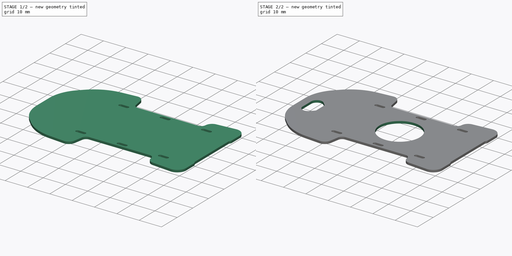
[diagram: build sequence overview — one tinted view per stage of 2, left to right]
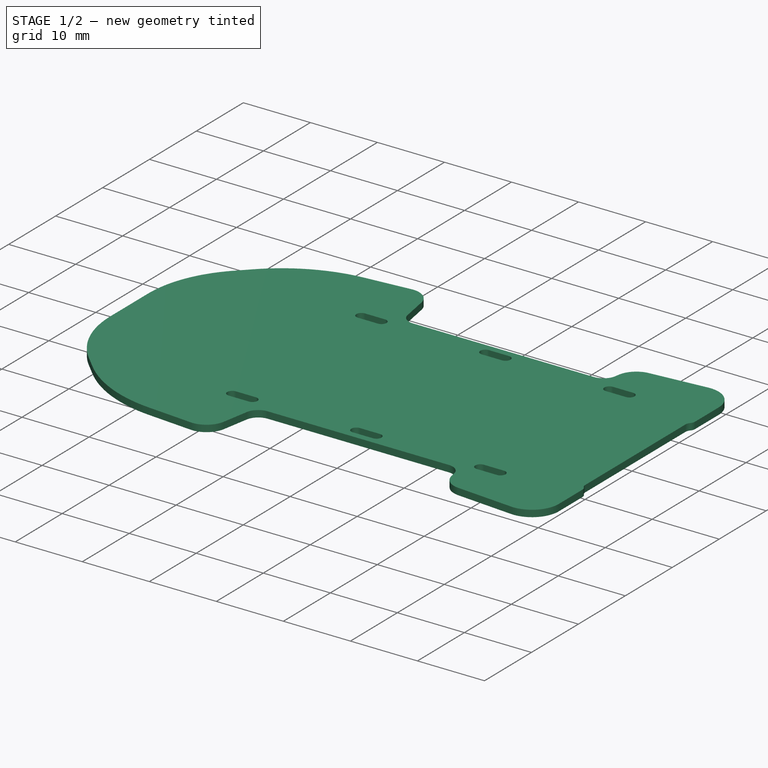
[diagram: stage 1 of 2 — iso view after this stage's code; geometry added in this stage tinted green]
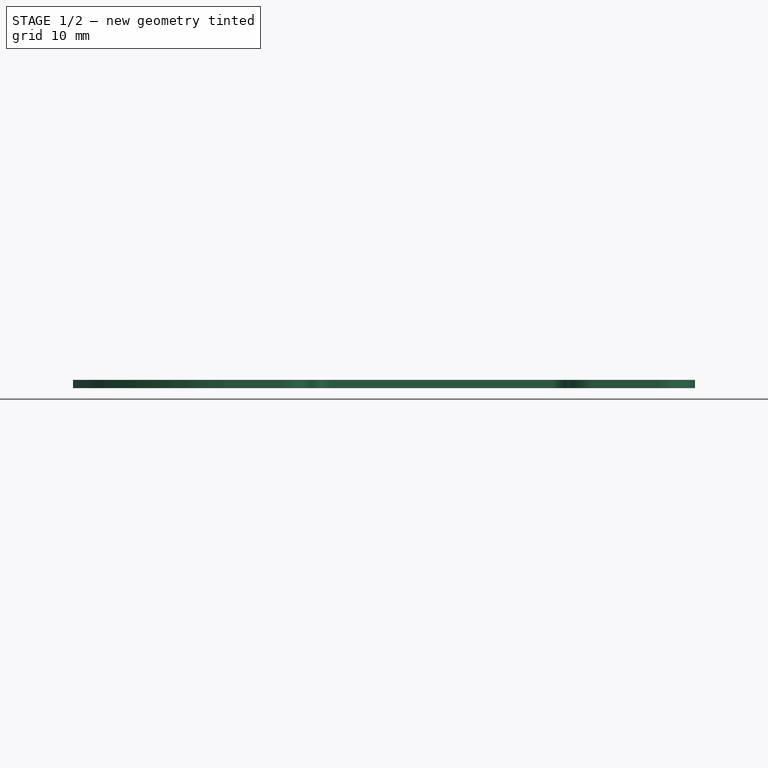
[diagram: stage 1 of 2 — front view after this stage's code; geometry added in this stage tinted green]
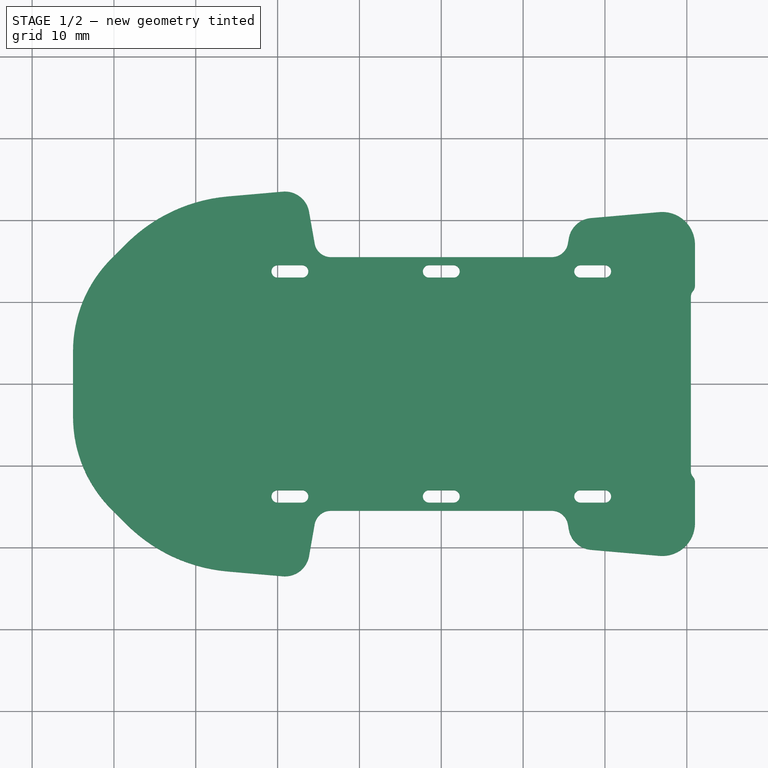
[diagram: stage 1 of 2 — top view after this stage's code; geometry added in this stage tinted green]
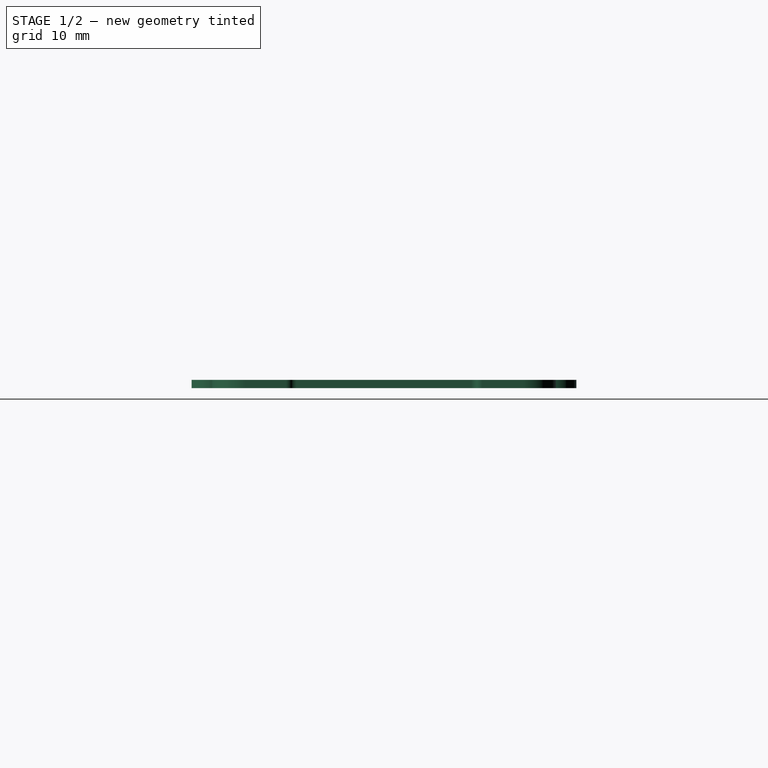
[diagram: stage 1 of 2 — right view after this stage's code; geometry added in this stage tinted green]
FCSTD DOCUMENT  (FreeCAD 0.18.1R)
Label: PCB_Base
License: All rights reserved
LicenseURL: http://en.wikipedia.org/wiki/All_rights_reserved
objects: Sketcher::SketchObject×3, PartDesign::Pocket×2, PartDesign::Pad×1, PartDesign::Mirrored×1, PartDesign::Body×1
note: 11 computed .brp shape members not serialized (recipe doc carries the construction recipe); baked Part::Feature solids carry a one-line shape summary decoded from their .brp

FEATURE [Sketcher::SketchObject] Sketch007
  MapMode = 5
  Support = -> [XY_Plane]
  sketch-geometry (33):
    g0: LineSegment StartX=13.5 StartY=15.5 StartZ=0 EndX=-13.5 EndY=15.5 EndZ=0
    g1: LineSegment StartX=-19.3696 StartY=23.5 StartZ=0 EndX=-26.0989 EndY=22.9113 EndZ=0
    g2: LineSegment StartX=-20 StartY=13 StartZ=0 EndX=-17 EndY=13 EndZ=0
    g3: LineSegment StartX=-1.5 StartY=13 StartZ=0 EndX=1.5 EndY=13 EndZ=0
    g4: LineSegment StartX=17 StartY=13 StartZ=0 EndX=20 EndY=13 EndZ=0
    g5: ArcOfCircle CenterX=-20 CenterY=13.75 CenterZ=0 NormalX=0 NormalY=0 NormalZ=1 AngleXU=0 Radius=0.75 StartAngle=1.5708 EndAngle=4.71239
    g6: ArcOfCircle CenterX=-17 CenterY=13.75 CenterZ=0 NormalX=0 NormalY=0 NormalZ=1 AngleXU=0 Radius=0.75 StartAngle=4.71239 EndAngle=7.85398
    g7: LineSegment StartX=-20 StartY=14.5 StartZ=0 EndX=-17 EndY=14.5 EndZ=0
    g8: ArcOfCircle CenterX=-1.5 CenterY=13.75 CenterZ=0 NormalX=0 NormalY=0 NormalZ=1 AngleXU=0 Radius=0.75 StartAngle=1.5708 EndAngle=4.71239
    g9: ArcOfCircle CenterX=1.5 CenterY=13.75 CenterZ=0 NormalX=0 NormalY=0 NormalZ=1 AngleXU=0 Radius=0.75 StartAngle=4.71239 EndAngle=7.85398
    g10: LineSegment StartX=-1.5 StartY=14.5 StartZ=0 EndX=1.5 EndY=14.5 EndZ=0
    g11: ArcOfCircle CenterX=17 CenterY=13.75 CenterZ=0 NormalX=0 NormalY=0 NormalZ=1 AngleXU=0 Radius=0.75 StartAngle=1.5708 EndAngle=4.71239
    g12: ArcOfCircle CenterX=20 CenterY=13.75 CenterZ=0 NormalX=0 NormalY=0 NormalZ=1 AngleXU=0 Radius=0.75 StartAngle=4.71239 EndAngle=7.85398
    g13: LineSegment StartX=17 StartY=14.5 StartZ=0 EndX=20 EndY=14.5 EndZ=0
    g14: LineSegment StartX=-45 StartY=4 StartZ=0 EndX=-45 EndY=0 EndZ=0
    g15: ArcOfCircle CenterX=13.5 CenterY=17.5 CenterZ=0 NormalX=0 NormalY=0 NormalZ=1 AngleXU=0 Radius=2 StartAngle=4.71239 EndAngle=6.10865
    g16: ArcOfCircle CenterX=27 CenterY=17.0152 CenterZ=0 NormalX=0 NormalY=0 NormalZ=1 AngleXU=0 Radius=4 StartAngle=1.38e-14 EndAngle=1.65806
    g17: LineSegment StartX=18.2766 StartY=20.2673 StartZ=0 EndX=26.6514 EndY=21 EndZ=0
    g18: ArcOfCircle CenterX=18.5381 CenterY=17.2787 CenterZ=0 NormalX=0 NormalY=0 NormalZ=1 AngleXU=0 Radius=3 StartAngle=1.65806 EndAngle=2.96706
    g19: LineSegment StartX=15.5837 StartY=17.7997 StartZ=0 EndX=15.4696 EndY=17.1527 EndZ=0
    g20: LineSegment [constr] StartX=-20 StartY=13.75 StartZ=0 EndX=0 EndY=13.75 EndZ=0
    g21: LineSegment [constr] StartX=0 StartY=13.75 StartZ=0 EndX=20 EndY=13.75 EndZ=0
    g22: ArcOfCircle CenterX=-13.5 CenterY=17.5 CenterZ=0 NormalX=0 NormalY=0 NormalZ=1 AngleXU=0 Radius=2 StartAngle=3.31613 EndAngle=4.71239
    g23: LineSegment StartX=-15.4696 StartY=17.1527 StartZ=0 EndX=-16.1537 EndY=21.0324 EndZ=0
    g24: ArcOfCircle CenterX=-19.1081 CenterY=20.5114 CenterZ=0 NormalX=0 NormalY=0 NormalZ=1 AngleXU=0 Radius=3 StartAngle=0.174533 EndAngle=1.65806
    g25: ArcOfCircle CenterX=-29 CenterY=4 CenterZ=0 NormalX=0 NormalY=0 NormalZ=1 AngleXU=0 Radius=16 StartAngle=2.35619 EndAngle=3.14159
    g26: ArcOfCircle CenterX=-24.3558 CenterY=2.98737 CenterZ=0 NormalX=0 NormalY=0 NormalZ=1 AngleXU=0 Radius=20 StartAngle=1.65806 EndAngle=2.35619
    g27: LineSegment StartX=-40.3137 StartY=15.3137 StartZ=0 EndX=-38.4979 EndY=17.1295 EndZ=0
    g28: LineSegment StartX=-45 StartY=0 StartZ=0 EndX=30.5 EndY=0 EndZ=0
    g29: LineSegment StartX=30.5 StartY=0 StartZ=0 EndX=30.5 EndY=10.6771 EndZ=0
    g30: ArcOfCircle CenterX=31.5 CenterY=10.6771 CenterZ=0 NormalX=0 NormalY=0 NormalZ=1 AngleXU=0 Radius=1 StartAngle=2.41886 EndAngle=3.14159
    g31: ArcOfCircle CenterX=30 CenterY=12 CenterZ=0 NormalX=0 NormalY=0 NormalZ=1 AngleXU=0 Radius=1 StartAngle=5.56045 EndAngle=6.28319
    g32: LineSegment StartX=31 StartY=17.0152 StartZ=0 EndX=31 EndY=12 EndZ=0
  constraints (93):
    c: Horizontal(g2)
    c: Horizontal(g3)
    c: Horizontal(g4)
    c: Coincident(g5,g2)
    c: Coincident(g6,g2)
    c: Coincident(g7,g5)
    c: Coincident(g7,g6)
    c: Horizontal(g7)
    c: Vertical(g2,g5)
    c: Vertical(g5,g5)
    c: Vertical(g6,g6)
    c: Vertical(g6,g2)
    c: Radius(g5) = 0.75
    c: Coincident(g8,g3)
    c: Coincident(g10,g8)
    c: Coincident(g10,g9)
    c: Coincident(g9,g3)
    c: Vertical(g3,g9)
    c: Vertical(g9,g9)
    c: Vertical(g3,g8)
    c: Vertical(g8,g8)
    c: Coincident(g11,g4)
    c: Coincident(g12,g4)
    c: Coincident(g13,g12)
    c: Horizontal(g13)
    c: Coincident(g13,g11)
    c: Vertical(g11,g11)
    c: Vertical(g11,g4)
    c: Vertical(g4,g12)
    c: Vertical(g12,g12)
    c: Equal(g11,g8)
    c: Equal(g8,g5)
    c: PointOnObject(g14,g-1)
    c: Vertical(g14)
    c: Tangent(g17,g16) = 1.5708
    c: Tangent(g15,g0) = 1.5708
    c: Radius(g15) = 2
    c: Tangent(g19,g15) = 1.5708
    c: Tangent(g18,g19) = -1.5708
    c: Tangent(g18,g17) = 1.5708
    c: Angle(g19,g0) = 1.74533
    c: DistanceX(g5,g12) = 40
    c: Equal(g2,g3)
    c: Equal(g3,g4)
    c: DistanceX(g2,g2) = 3
    c: Coincident(g20,g5)
    c: Horizontal(g20)
    c: Coincident(g21,g20)
    c: Coincident(g21,g12)
    c: PointOnObject(g9,g21)
    c: Symmetric(g5,g12,g-2)
    c: DistanceY(g11,g0) = 1
    c: Tangent(g24,g1) = -1.5708
    c: Tangent(g26,g1) = -1.5708
    c: Tangent(g27,g26) = 1.5708
    c: Tangent(g24,g23) = -1.5708
    c: Tangent(g22,g0) = 1.5708
    c: Tangent(g23,g22) = 1.5708
    c: Tangent(g27,g25) = 1.5708
    c: Tangent(g25,g14) = -1.5708
    c: DistanceY(g14,g14) = 4
    c: Radius(g22) = 2
    c: Angle(g0,g23) = 1.74533
    c: PointOnObject(g20,g-2)
    c: Symmetric(g9,g8,g-2)
    c: Coincident(g28,g14)
    c: PointOnObject(g28,g-1)
    c: Coincident(g29,g28)
    c: Vertical(g29)
    c: Tangent(g30,g29) = 1.5708
    c: Vertical(g32)
    c: Tangent(g31,g30) = 1.5708
    c: Tangent(g31,g32) = 1.5708
    c: Radius(g30) = 1
    c: Equal(g30,g31)
    c: Tangent(g32,g16) = 1.5708
    c: DistanceX(g14,g31) = 76
    c: DistanceX(g14,g-1) = 45
    c: Distance(g4,g28) = 13
    c: DistanceX(g28,g31) = 0.5
    c: DistanceY(g28,g16) = 21
    c: DistanceY(g-1,g31) = 12
    c: Symmetric(g0,g0,g-2)
    c: DistanceX(g0,g0) = 27
    c: Radius(g18) = 3
    c: Radius(g16) = 4
    c: Angle(g14,g1) = 1.65806
    c: Angle(g17,g29) = 1.48353
    c: Angle(g28,g27) = 0.785398
    c: DistanceY(g14,g1) = 23.5
    c: Radius(g26) = 20
    c: Radius(g25) = 16
    c: Radius(g24) = 3
FEATURE [PartDesign::Pad] Pad
  Length = 1
  Length2 = 100
  Profile = -> Sketch007
  Type = 0
FEATURE [PartDesign::Mirrored] Mirrored
  BaseFeature = -> Pad
  MirrorPlane = -> Sketch007 [H_Axis]
  Originals = -> [Pad]
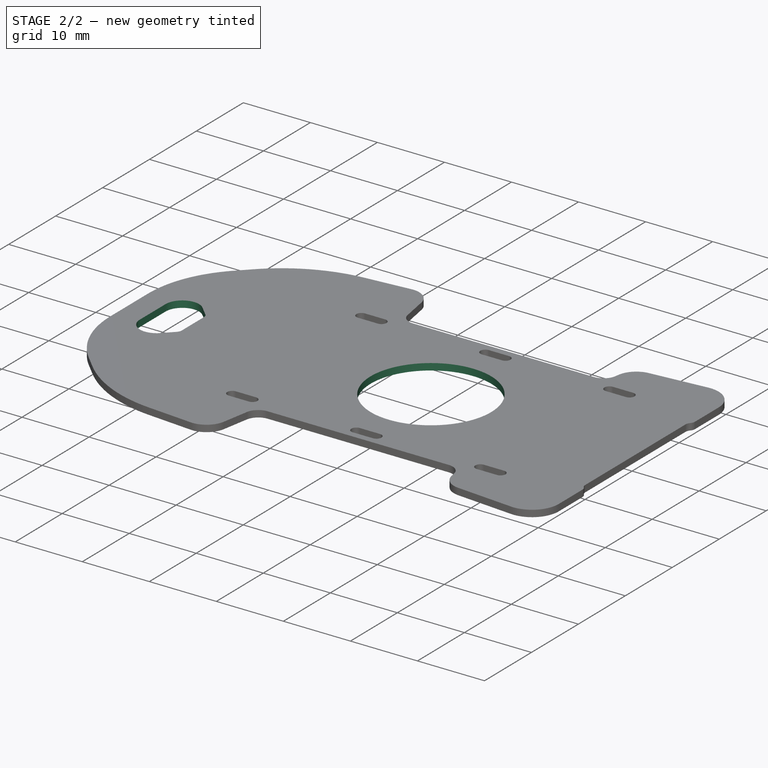
[diagram: stage 2 of 2 — iso view after this stage's code; geometry added in this stage tinted green]
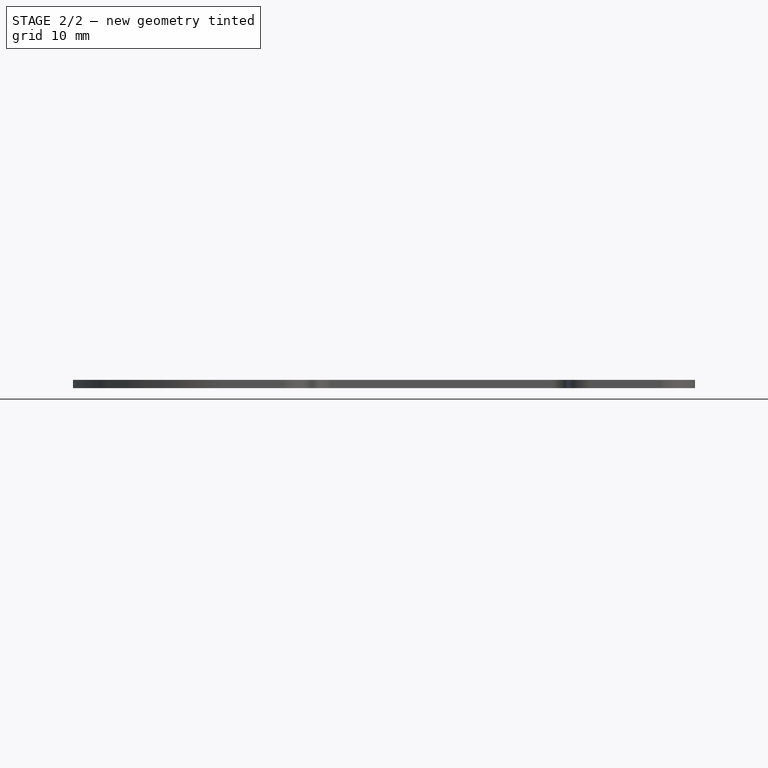
[diagram: stage 2 of 2 — front view after this stage's code; geometry added in this stage tinted green]
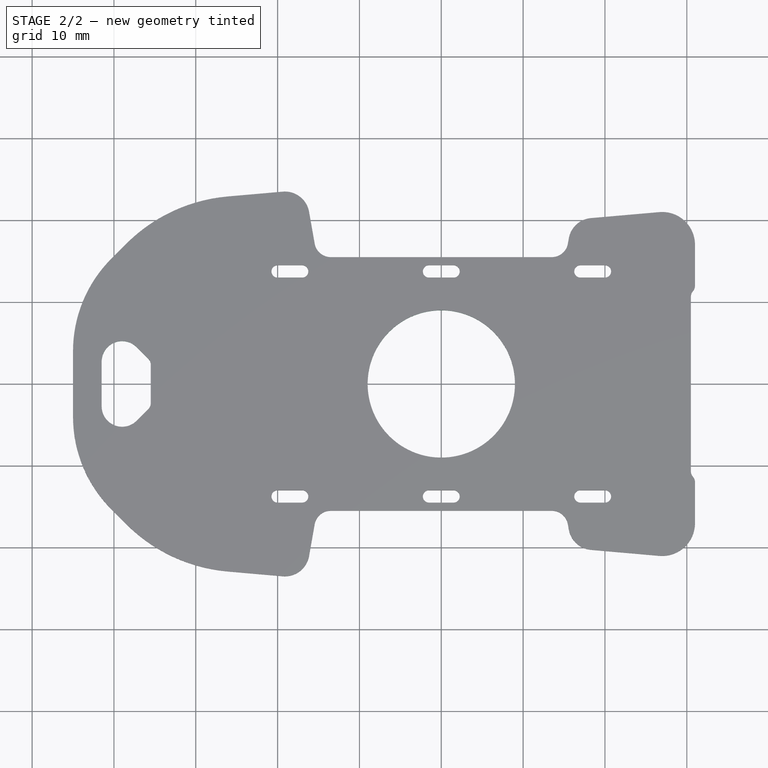
[diagram: stage 2 of 2 — top view after this stage's code; geometry added in this stage tinted green]
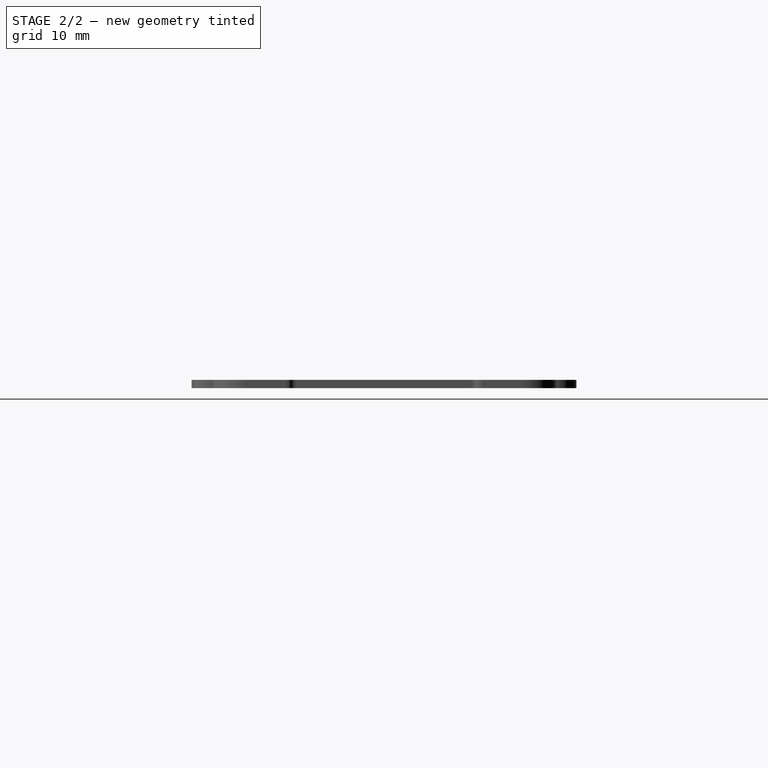
[diagram: stage 2 of 2 — right view after this stage's code; geometry added in this stage tinted green]
FEATURE [Sketcher::SketchObject] Sketch
  MapMode = 5
  Placement = pos=(0,0,1) rot=(0,0,1;0rad)
  Support = -> [Mirrored]
  sketch-geometry (1):
    g0: Circle CenterX=0 CenterY=0 CenterZ=0 NormalX=0 NormalY=0 NormalZ=1 AngleXU=0 Radius=9
  constraints (2):
    c: Coincident(g0,g-1)
    c: Radius(g0) = 9
FEATURE [PartDesign::Pocket] Pocket
  BaseFeature = -> Mirrored
  Length = 5
  Length2 = 100
  Profile = -> Sketch
  Type = 1
FEATURE [Sketcher::SketchObject] Sketch008
  MapMode = 5
  Support = -> [XY_Plane]
  sketch-geometry (8):
    g0: LineSegment StartX=-41.5 StartY=2.73223 StartZ=0 EndX=-41.5 EndY=-2.73223 EndZ=0
    g1: LineSegment StartX=-37.2322 StartY=4.5 StartZ=0 EndX=-35.7929 EndY=3.06066 EndZ=0
    g2: LineSegment StartX=-35.5 StartY=2.35355 StartZ=0 EndX=-35.5 EndY=-2.35355 EndZ=0
    g3: LineSegment StartX=-35.7929 StartY=-3.06066 StartZ=0 EndX=-37.2322 EndY=-4.5 EndZ=0
    g4: ArcOfCircle CenterX=-36.5 CenterY=2.35355 CenterZ=0 NormalX=0 NormalY=0 NormalZ=1 AngleXU=0 Radius=1 StartAngle=0 EndAngle=0.785398
    g5: ArcOfCircle CenterX=-39 CenterY=2.73223 CenterZ=0 NormalX=0 NormalY=0 NormalZ=1 AngleXU=0 Radius=2.5 StartAngle=0.785398 EndAngle=3.14159
    g6: ArcOfCircle CenterX=-39 CenterY=-2.73223 CenterZ=0 NormalX=0 NormalY=0 NormalZ=1 AngleXU=0 Radius=2.5 StartAngle=3.14159 EndAngle=5.49779
    g7: ArcOfCircle CenterX=-36.5 CenterY=-2.35355 CenterZ=0 NormalX=0 NormalY=0 NormalZ=1 AngleXU=0 Radius=1 StartAngle=5.49779 EndAngle=6.28319
  constraints (18):
    c: Tangent(g2,g4) = 1.5708
    c: Tangent(g1,g4) = 1.5708
    c: Tangent(g1,g5) = 1.5708
    c: Tangent(g0,g5) = -1.5708
    c: Tangent(g0,g6) = -1.5708
    c: Tangent(g3,g6) = 1.5708
    c: Tangent(g3,g7) = 1.5708
    c: Tangent(g2,g7) = 1.5708
    c: Equal(g4,g7)
    c: Symmetric(g2,g2,g-1)
    c: Equal(g5,g6)
    c: Symmetric(g0,g0,g-1)
    c: DistanceY(g3,g1) = 9
    c: DistanceX(g0,g-1) = 41.5
    c: Radius(g6) = 2.5
    c: Radius(g7) = 1
    c: DistanceX(g0,g2) = 6
    c: Angle(g3,g0) = 0.785398
FEATURE [PartDesign::Pocket] Pocket001
  BaseFeature = -> Pocket
  Length = 5
  Length2 = 100
  Profile = -> Sketch008
  Reversed = true
  Type = 1
FEATURE [PartDesign::Body] Body
  Group = -> [Sketch007,Pad,Mirrored,Sketch,Pocket,Sketch008,Pocket001]
  Origin = -> Origin
  Tip = -> Pocket001
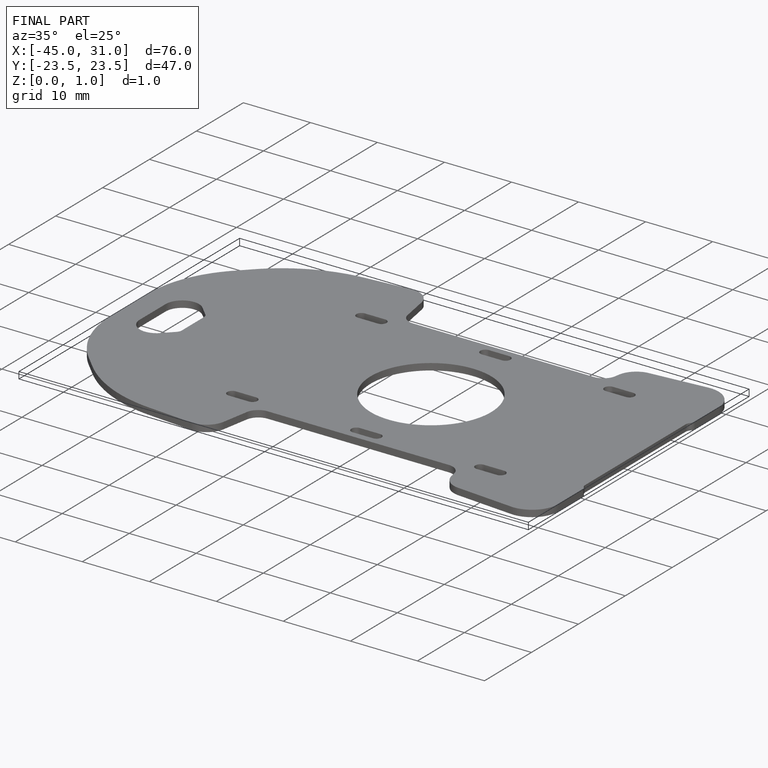
[diagram: finished part — iso view with bounding-box wireframe]
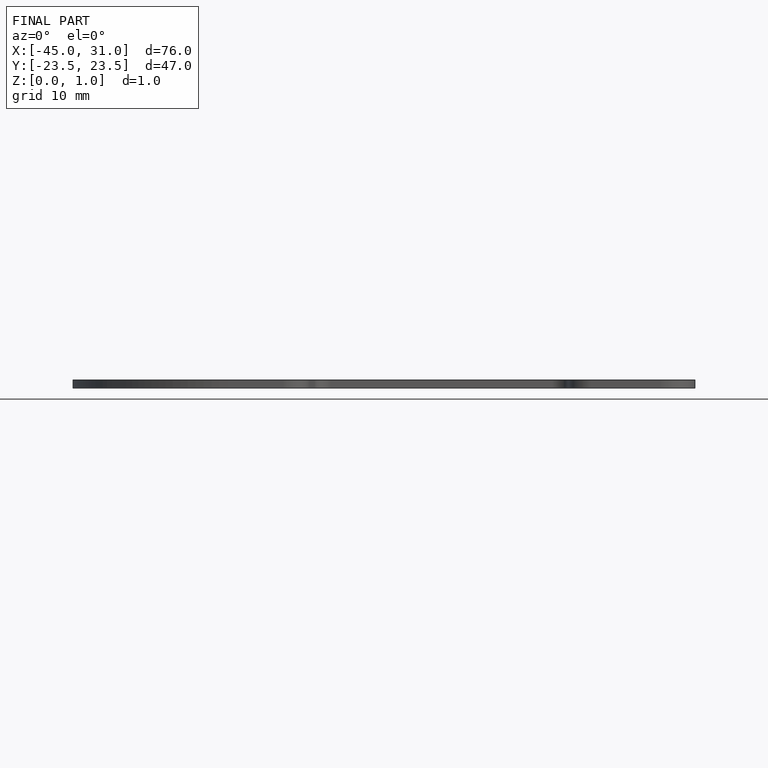
[diagram: finished part — front view with bounding-box wireframe]
